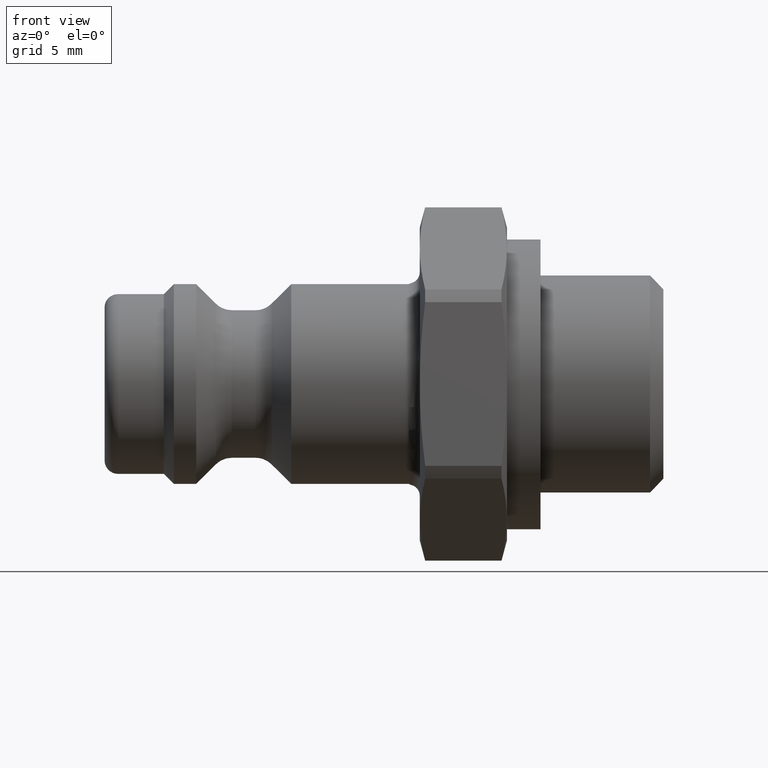
[diagram: clean part render]
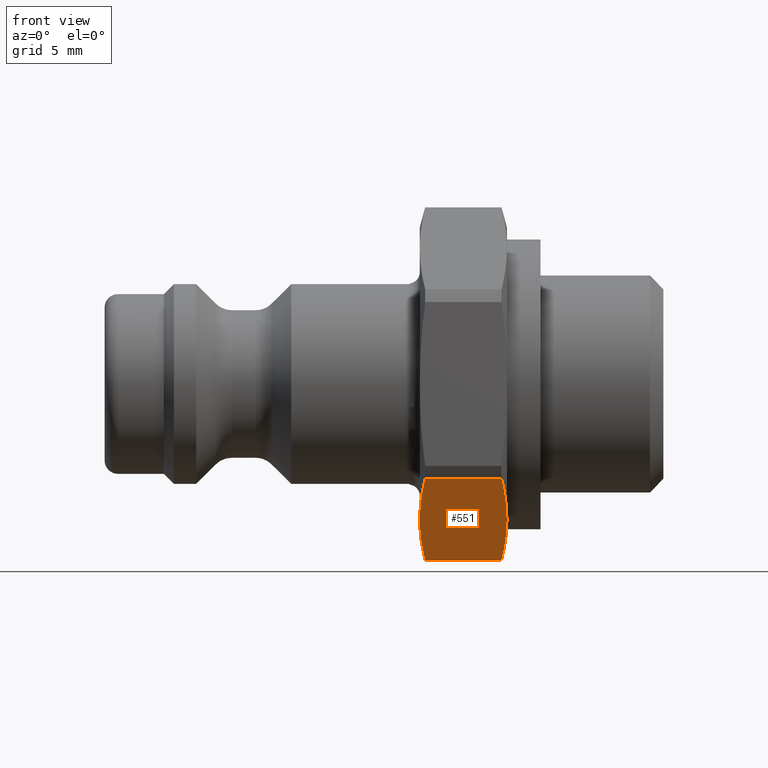
[diagram: same view with one face highlighted and labeled with its STEP entity id]
A machine part, front view. The second image highlights one B-rep face of the part: STEP entity #551.
In plain terms, the highlighted planar face has unit normal (0, 0.5, 0.866).
Its self-contained STEP definition (entity closure, byte-faithful):
#280=CARTESIAN_POINT('',(14.100000000000001,-3.500000000000005,-6.062177826491072));
#281=VERTEX_POINT('',#280);
#470=CARTESIAN_POINT('',(19.405182586687065,-3.500000000000006,-6.062177826491074));
#471=DIRECTION('',(3.597954E-016,0.500000000000000,0.866025403784438));
#472=DIRECTION('',(0.0,-0.866025403784438,0.500000000000000));
#473=AXIS2_PLACEMENT_3D('',#470,#471,#472);
#474=PLANE('',#473);
#475=CARTESIAN_POINT('',(14.341154273188012,-0.328643823220116,-7.893161168851126));
#476=VERTEX_POINT('',#475);
#477=CARTESIAN_POINT('',(14.341154273188012,-0.328643823220105,-7.893161168851131));
#478=CARTESIAN_POINT('',(14.100000000000000,-2.010101125002741,-6.922371343036065));
#479=CARTESIAN_POINT('',(14.100000000000001,-3.500000000000005,-6.062177826491072));
#487=(BOUNDED_CURVE()B_SPLINE_CURVE(2,(#477,#478,#479),.UNSPECIFIED.,.F.,.U.)B_SPLINE_CURVE_WITH_KNOTS((3,3),(0.0,0.367169590188576),.UNSPECIFIED.)CURVE()GEOMETRIC_REPRESENTATION_ITEM()RATIONAL_B_SPLINE_CURVE((1.0,1.031642241421718,1.0))REPRESENTATION_ITEM(''));
#488=EDGE_CURVE('',#476,#281,#487,.T.);
#489=ORIENTED_EDGE('',*,*,#488,.F.);
#490=CARTESIAN_POINT('',(17.758845726811991,-0.328643823220118,-7.893161168851126));
#491=VERTEX_POINT('',#490);
#492=CARTESIAN_POINT('',(17.758845726811991,-0.328643823220118,-7.893161168851126));
#493=DIRECTION('',(-1.0,0.0,0.0));
#494=VECTOR('',#493,3.417691453623977);
#495=LINE('',#492,#494);
#496=EDGE_CURVE('',#491,#476,#495,.T.);
#497=ORIENTED_EDGE('',*,*,#496,.F.);
#498=CARTESIAN_POINT('',(18.0,-3.500000000000006,-6.062177826491073));
#499=VERTEX_POINT('',#498);
#500=CARTESIAN_POINT('',(18.0,-3.500000000000006,-6.062177826491073));
#501=CARTESIAN_POINT('',(18.0,-2.010101125002759,-6.922371343036056));
#502=CARTESIAN_POINT('',(17.758845726811991,-0.328643823220115,-7.893161168851128));
#510=(BOUNDED_CURVE()B_SPLINE_CURVE(2,(#500,#501,#502),.UNSPECIFIED.,.F.,.U.)B_SPLINE_CURVE_WITH_KNOTS((3,3),(0.367169590188574,0.734339180377149),.UNSPECIFIED.)CURVE()GEOMETRIC_REPRESENTATION_ITEM()RATIONAL_B_SPLINE_CURVE((1.0,1.031642241421747,1.0))REPRESENTATION_ITEM(''));
#511=EDGE_CURVE('',#499,#491,#510,.T.);
#512=ORIENTED_EDGE('',*,*,#511,.F.);
#513=CARTESIAN_POINT('',(17.758845726811991,-6.671356176779895,-4.231194484131020));
#514=VERTEX_POINT('',#513);
#515=CARTESIAN_POINT('',(17.758845726811991,-6.671356176779896,-4.231194484131019));
#516=CARTESIAN_POINT('',(18.0,-4.989898874997269,-5.201984309946082));
#517=CARTESIAN_POINT('',(18.0,-3.500000000000006,-6.062177826491073));
#525=(BOUNDED_CURVE()B_SPLINE_CURVE(2,(#515,#516,#517),.UNSPECIFIED.,.F.,.U.)B_SPLINE_CURVE_WITH_KNOTS((3,3),(0.0,0.367169590188574),.UNSPECIFIED.)CURVE()GEOMETRIC_REPRESENTATION_ITEM()RATIONAL_B_SPLINE_CURVE((1.0,1.031642241421734,1.0))REPRESENTATION_ITEM(''));
#526=EDGE_CURVE('',#514,#499,#525,.T.);
#527=ORIENTED_EDGE('',*,*,#526,.F.);
#528=CARTESIAN_POINT('',(14.341154273188012,-6.671356176779895,-4.231194484131018));
#529=VERTEX_POINT('',#528);
#530=CARTESIAN_POINT('',(14.341154273188014,-6.671356176779895,-4.231194484131020));
#531=DIRECTION('',(1.0,0.0,0.0));
#532=VECTOR('',#531,3.417691453623977);
#533=LINE('',#530,#532);
#534=EDGE_CURVE('',#529,#514,#533,.T.);
#535=ORIENTED_EDGE('',*,*,#534,.F.);
#536=CARTESIAN_POINT('',(14.100000000000001,-3.500000000000005,-6.062177826491072));
#537=CARTESIAN_POINT('',(14.100000000000003,-4.989898874997280,-5.201984309946073));
#538=CARTESIAN_POINT('',(14.341154273188012,-6.671356176779901,-4.231194484131014));
#546=(BOUNDED_CURVE()B_SPLINE_CURVE(2,(#536,#537,#538),.UNSPECIFIED.,.F.,.U.)B_SPLINE_CURVE_WITH_KNOTS((3,3),(0.367169590188576,0.734339180377151),.UNSPECIFIED.)CURVE()GEOMETRIC_REPRESENTATION_ITEM()RATIONAL_B_SPLINE_CURVE((1.0,1.031642241421748,1.0))REPRESENTATION_ITEM(''));
#547=EDGE_CURVE('',#281,#529,#546,.T.);
#548=ORIENTED_EDGE('',*,*,#547,.F.);
#549=EDGE_LOOP('',(#489,#497,#512,#527,#535,#548));
#550=FACE_OUTER_BOUND('',#549,.T.);
#551=ADVANCED_FACE('',(#550),#474,.F.);